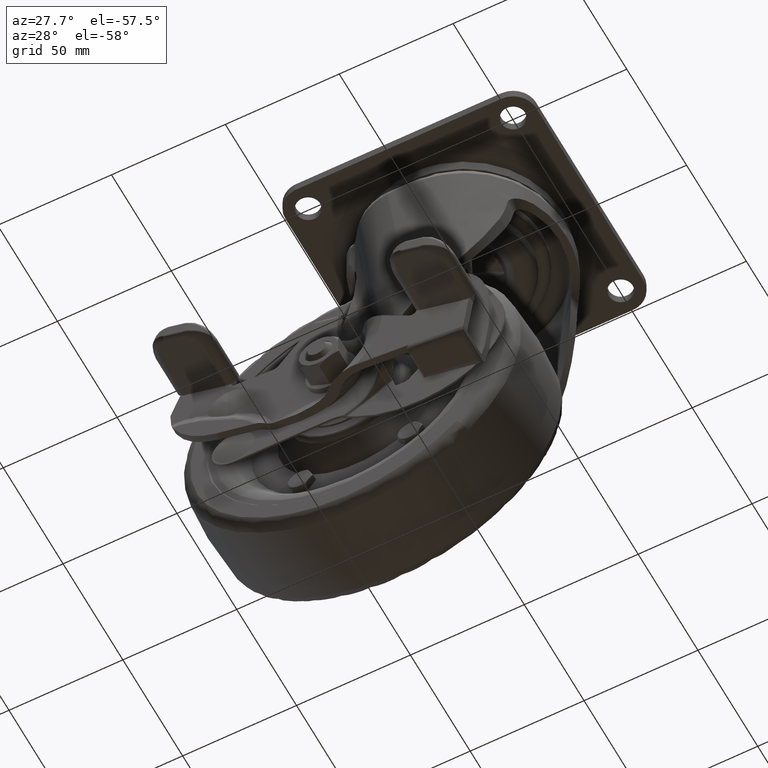
[diagram: clean part render]
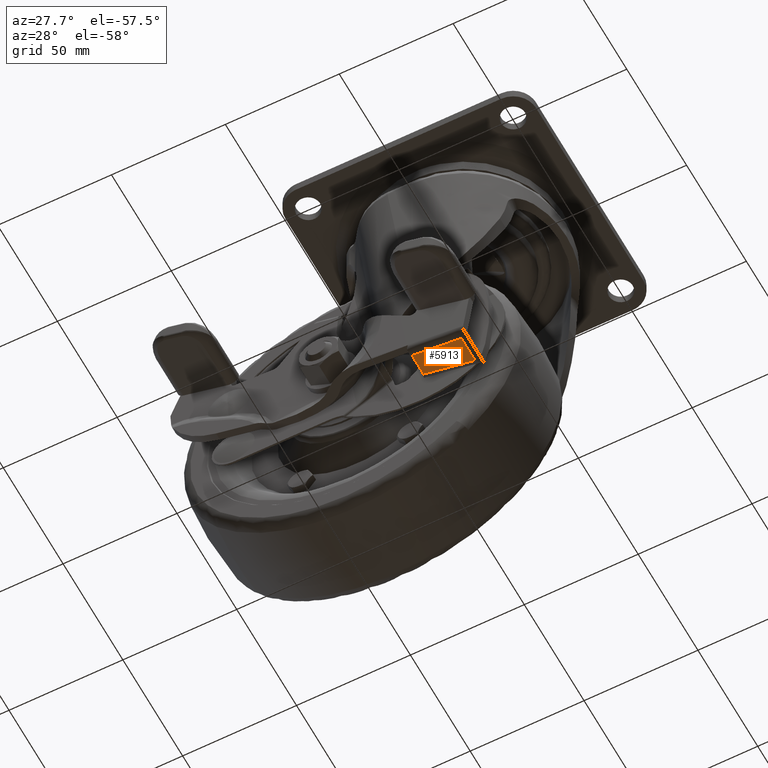
[diagram: same view with one face highlighted and labeled with its STEP entity id]
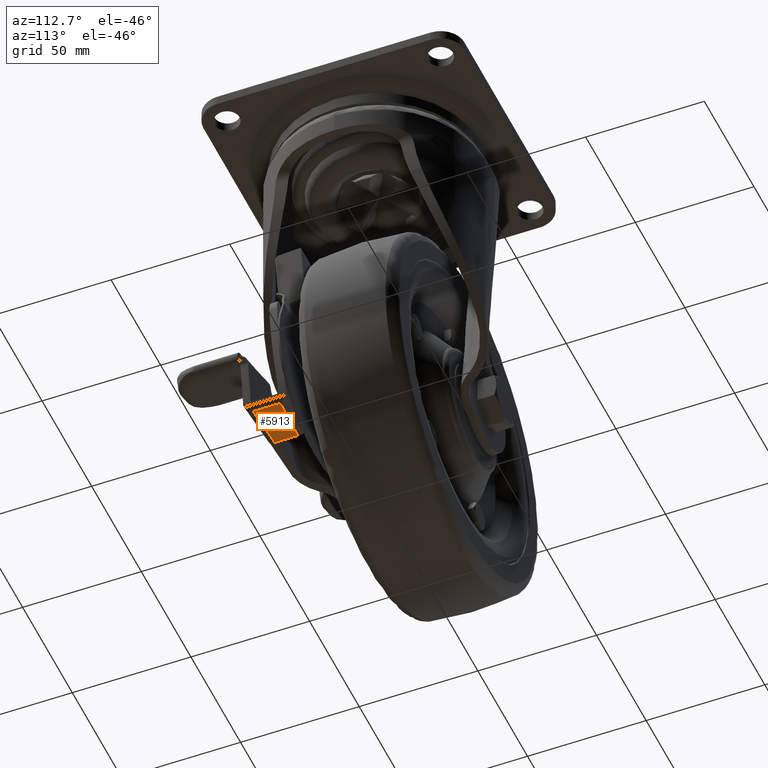
[diagram: same view with one face highlighted and labeled with its STEP entity id]
A machine part, auxiliary view. The second image highlights one B-rep face of the part: STEP entity #5913.
A second angle (auxiliary view) of the same face is appended — the face is thin or edge-on in the first view.
In plain terms, the highlighted face is a freeform B-spline surface patch.
Its self-contained STEP definition (entity closure, byte-faithful):
#4566=CARTESIAN_POINT('',(-0.075720000000217,-43.799999999999997,-141.299416000000010));
#4567=VERTEX_POINT('',#4566);
#4607=CARTESIAN_POINT('',(21.627385509826102,-43.799999999999997,-144.736847758095000));
#4608=VERTEX_POINT('',#4607);
#4609=CARTESIAN_POINT('',(21.627385509826102,-43.799999999999997,-144.736847758095000));
#4610=CARTESIAN_POINT('',(-0.075720000000217,-43.799999999999997,-141.299416000000010));
#4611=QUASI_UNIFORM_CURVE('',1,(#4609,#4610),.UNSPECIFIED.,.F.,.U.);
#4612=EDGE_CURVE('',#4608,#4567,#4611,.T.);
#5788=CARTESIAN_POINT('',(-0.075719985282508,-38.850000000000001,-141.299416002330990));
#5789=VERTEX_POINT('',#5788);
#5790=CARTESIAN_POINT('',(-0.075719985282508,-38.850000000000001,-141.299416002330990));
#5791=CARTESIAN_POINT('',(-0.075720000000217,-43.799999999999997,-141.299416000000010));
#5792=QUASI_UNIFORM_CURVE('',1,(#5790,#5791),.UNSPECIFIED.,.F.,.U.);
#5793=EDGE_CURVE('',#5789,#4567,#5792,.T.);
#5832=CARTESIAN_POINT('',(21.627377999999901,-32.438120863231752,-144.736847000000010));
#5833=VERTEX_POINT('',#5832);
#5834=CARTESIAN_POINT('',(21.627377999999901,-32.438120863231752,-144.736847000000010));
#5835=CARTESIAN_POINT('',(21.627385509826102,-43.799999999999997,-144.736847758095000));
#5836=QUASI_UNIFORM_CURVE('',1,(#5834,#5835),.UNSPECIFIED.,.F.,.U.);
#5837=EDGE_CURVE('',#5833,#4608,#5836,.T.);
#5883=CARTESIAN_POINT('',(-1.159790056852891,-44.367525840860047,-141.127716155873290));
#5884=CARTESIAN_POINT('',(22.711455722408719,-44.367525840860047,-144.908550386558200));
#5885=CARTESIAN_POINT('',(-1.159790056852891,-31.870594717622360,-141.127716155873290));
#5886=CARTESIAN_POINT('',(22.711455722408719,-31.870594717622360,-144.908550386558200));
#5887=B_SPLINE_SURFACE_WITH_KNOTS('',1,1,((#5883,#5885),(#5884,#5886)),.UNSPECIFIED.,.F.,.F.,.U.,(2,2),(2,2),(0.0,24.168803911940572),(0.0,12.496931123237690),.UNSPECIFIED.);
#5888=ORIENTED_EDGE('',*,*,#5837,.T.);
#5889=ORIENTED_EDGE('',*,*,#4612,.T.);
#5890=ORIENTED_EDGE('',*,*,#5793,.F.);
#5891=CARTESIAN_POINT('',(-0.075720000000217,-34.160932884404701,-141.299416000000010));
#5892=VERTEX_POINT('',#5891);
#5893=CARTESIAN_POINT('',(-0.075720000000217,-34.160932884404701,-141.299416000000010));
#5894=CARTESIAN_POINT('',(-0.075719985282508,-38.850000000000001,-141.299416002330990));
#5895=QUASI_UNIFORM_CURVE('',1,(#5893,#5894),.UNSPECIFIED.,.F.,.U.);
#5896=EDGE_CURVE('',#5892,#5789,#5895,.T.);
#5897=ORIENTED_EDGE('',*,*,#5896,.F.);
#5898=CARTESIAN_POINT('',(-0.075720000000217,-34.160932884404701,-141.299416000000010));
#5899=CARTESIAN_POINT('',(10.789084462302258,-33.466512353929630,-143.020230959125630));
#5900=CARTESIAN_POINT('',(21.627377999999901,-32.438120863231752,-144.736847000000010));
#5908=(BOUNDED_CURVE()B_SPLINE_CURVE(2,(#5898,#5899,#5900),.UNSPECIFIED.,.F.,.U.)CURVE()GEOMETRIC_REPRESENTATION_ITEM()QUASI_UNIFORM_CURVE()RATIONAL_B_SPLINE_CURVE((1.0,0.999881623131846,1.0))REPRESENTATION_ITEM(''));
#5909=EDGE_CURVE('',#5892,#5833,#5908,.T.);
#5910=ORIENTED_EDGE('',*,*,#5909,.T.);
#5911=EDGE_LOOP('',(#5888,#5889,#5890,#5897,#5910));
#5912=FACE_OUTER_BOUND('',#5911,.T.);
#5913=ADVANCED_FACE('',(#5912),#5887,.F.);